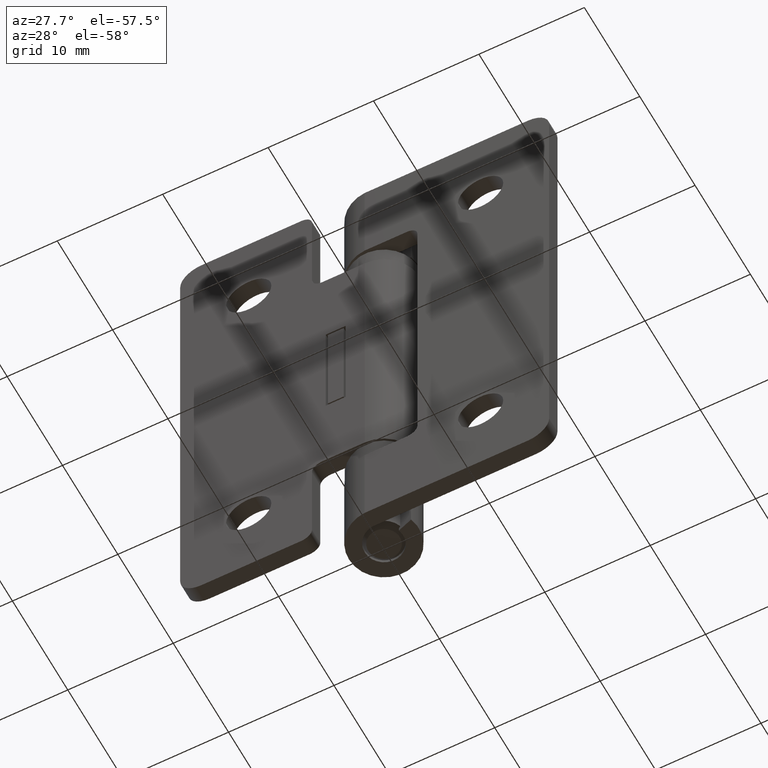
[diagram: clean part render]
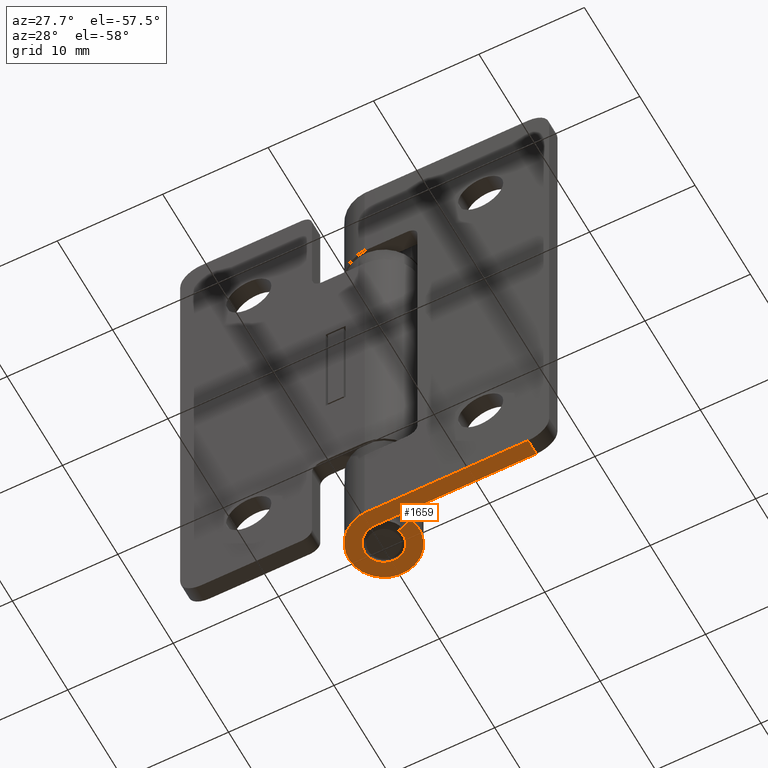
[diagram: same view with one face highlighted and labeled with its STEP entity id]
A machine part, auxiliary view. The second image highlights one B-rep face of the part: STEP entity #1659.
In plain terms, the highlighted planar face has unit normal (0, 0, 1).
Its self-contained STEP definition (entity closure, byte-faithful):
#155=LINE('',#2665,#277);
#160=LINE('',#2687,#282);
#169=LINE('',#2715,#291);
#175=LINE('',#2734,#297);
#277=VECTOR('',#2137,1.50000000044903);
#282=VECTOR('',#2158,15.5000000004236);
#291=VECTOR('',#2183,15.499999999975);
#297=VECTOR('',#2207,1.50000000000003);
#352=PLANE('',#1815);
#454=FACE_OUTER_BOUND('',#569,.T.);
#569=EDGE_LOOP('',(#1367,#1368,#1369,#1370,#1371,#1372,#1373,#1374));
#670=CIRCLE('',#1779,3.325);
#672=CIRCLE('',#1782,3.50460526315789);
#674=CIRCLE('',#1786,2.0083904109589);
#676=CIRCLE('',#1789,1.82499999955098);
#798=VERTEX_POINT('',#2626);
#800=VERTEX_POINT('',#2630);
#802=VERTEX_POINT('',#2635);
#808=VERTEX_POINT('',#2650);
#810=VERTEX_POINT('',#2654);
#812=VERTEX_POINT('',#2659);
#821=VERTEX_POINT('',#2686);
#832=VERTEX_POINT('',#2713);
#982=EDGE_CURVE('',#800,#798,#670,.T.);
#985=EDGE_CURVE('',#798,#802,#672,.T.);
#993=EDGE_CURVE('',#810,#808,#674,.T.);
#996=EDGE_CURVE('',#808,#812,#676,.T.);
#998=EDGE_CURVE('',#812,#800,#155,.T.);
#1008=EDGE_CURVE('',#802,#821,#160,.T.);
#1024=EDGE_CURVE('',#832,#810,#169,.T.);
#1034=EDGE_CURVE('',#821,#832,#175,.T.);
#1367=ORIENTED_EDGE('',*,*,#1024,.F.);
#1368=ORIENTED_EDGE('',*,*,#1034,.F.);
#1369=ORIENTED_EDGE('',*,*,#1008,.F.);
#1370=ORIENTED_EDGE('',*,*,#985,.F.);
#1371=ORIENTED_EDGE('',*,*,#982,.F.);
#1372=ORIENTED_EDGE('',*,*,#998,.F.);
#1373=ORIENTED_EDGE('',*,*,#996,.F.);
#1374=ORIENTED_EDGE('',*,*,#993,.F.);
#1659=ADVANCED_FACE('',(#454),#352,.F.);
#1779=AXIS2_PLACEMENT_3D('',#2632,#2104,#2105);
#1782=AXIS2_PLACEMENT_3D('',#2638,#2111,#2112);
#1786=AXIS2_PLACEMENT_3D('',#2656,#2125,#2126);
#1789=AXIS2_PLACEMENT_3D('',#2662,#2132,#2133);
#1815=AXIS2_PLACEMENT_3D('',#2733,#2205,#2206);
#2104=DIRECTION('center_axis',(1.,0.,0.));
#2105=DIRECTION('ref_axis',(0.,0.,-1.));
#2111=DIRECTION('center_axis',(1.,0.,0.));
#2112=DIRECTION('ref_axis',(0.,0.,-1.));
#2125=DIRECTION('center_axis',(-1.,0.,0.));
#2126=DIRECTION('ref_axis',(0.,0.,-1.));
#2132=DIRECTION('center_axis',(-1.,0.,0.));
#2133=DIRECTION('ref_axis',(0.,0.,-1.));
#2137=DIRECTION('',(0.,-0.330578512286619,-0.943778494782735));
#2158=DIRECTION('',(0.,0.,-1.));
#2183=DIRECTION('',(0.,0.,1.));
#2205=DIRECTION('center_axis',(1.,0.,0.));
#2206=DIRECTION('ref_axis',(0.,0.,-1.));
#2207=DIRECTION('',(0.,1.,0.));
#2626=CARTESIAN_POINT('',(-25.,1.48438002251368E-10,3.32500000042378));
#2630=CARTESIAN_POINT('',(-25.,-1.09917355357834,-3.1380634945979));
#2632=CARTESIAN_POINT('Origin',(-25.,1.48438011014773E-10,4.23780151595499E-10));
#2635=CARTESIAN_POINT('',(-25.,-3.49999999985157,4.23597901547113E-10));
#2638=CARTESIAN_POINT('Origin',(-25.,1.4843290398886E-10,-0.179605262734105));
#2650=CARTESIAN_POINT('',(-25.,1.48386364893116E-10,1.82499999997476));
#2654=CARTESIAN_POINT('',(-25.,-1.99999999985153,-2.50501930396801E-11));
#2656=CARTESIAN_POINT('Origin',(-25.,1.48444339286026E-10,-0.18339041098414));
#2659=CARTESIAN_POINT('',(-25.,-0.603305784999975,-1.72239575200001));
#2662=CARTESIAN_POINT('Origin',(-25.,1.48438011014773E-10,4.23780151595499E-10));
#2665=CARTESIAN_POINT('',(-25.,-1.09917355357834,-3.1380634945979));
#2686=CARTESIAN_POINT('',(-25.,-3.49999999985157,-15.5));
#2687=CARTESIAN_POINT('',(-25.,-3.49999999985157,4.23597901547113E-10));
#2713=CARTESIAN_POINT('',(-25.,-1.99999999985153,-15.5));
#2715=CARTESIAN_POINT('',(-25.,-1.99999999985153,-17.4999999995762));
#2733=CARTESIAN_POINT('Origin',(-25.,1.48438011014773E-10,4.23780151595499E-10));
#2734=CARTESIAN_POINT('',(-25.,-3.49999999985157,-15.5));